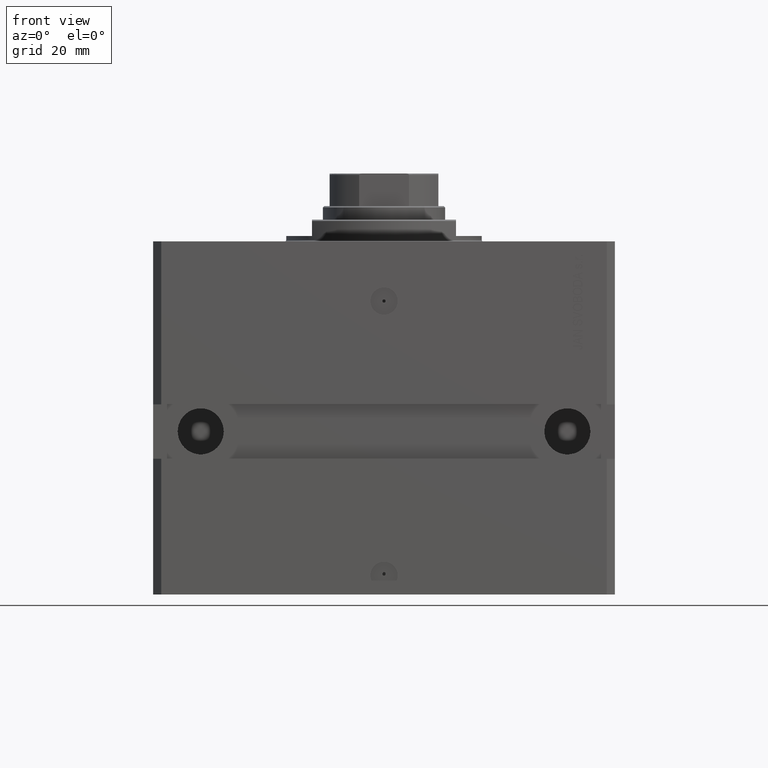
[diagram: clean part render]
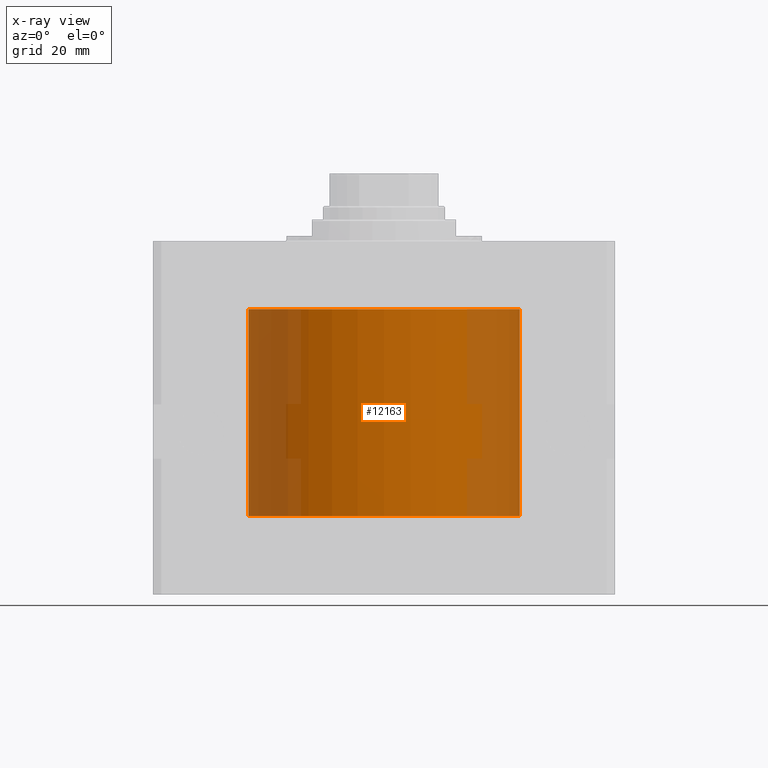
[diagram: x-ray — body ghosted, one internal face saturated and labeled with its STEP entity id]
A machine part, front view, then the same camera in x-ray: the body is ghosted and one INTERNAL B-rep face — a face not visible from any outside direction — is saturated and labeled: STEP entity #12163.
In plain terms, the highlighted cylindrical surface (partial cylindrical patch) has radius 50 mm, axis along (0, 0, 1).
Its self-contained STEP definition (entity closure, byte-faithful):
#1128 = DIRECTION ( 'NONE',  ( 1.000000000000000000, 0.000000000000000000, 0.000000000000000000 ) ) ;
#3129 = AXIS2_PLACEMENT_3D ( 'NONE', #9105, #16707, #19711 ) ;
#3203 = CARTESIAN_POINT ( 'NONE',  ( 50.00000000000000000, 0.000000000000000000, -24.99999999999999289 ) ) ;
#3316 = CARTESIAN_POINT ( 'NONE',  ( -50.00000000000000000, 6.123233995736764507E-15, -101.0999999999999943 ) ) ;
#3879 = VERTEX_POINT ( 'NONE', #41203 ) ;
#4404 = CARTESIAN_POINT ( 'NONE',  ( 0.000000000000000000, 0.000000000000000000, -101.0999999999999943 ) ) ;
#4418 = EDGE_CURVE ( 'NONE', #43694, #29622, #20547, .T. ) ;
#7197 = VECTOR ( 'NONE', #21071, 1000.000000000000000 ) ;
#7861 = ORIENTED_EDGE ( 'NONE', *, *, #4418, .F. ) ;
#8511 = EDGE_CURVE ( 'NONE', #3879, #43694, #28965, .T. ) ;
#9105 = CARTESIAN_POINT ( 'NONE',  ( 0.000000000000000000, 0.000000000000000000, -101.0999999999999943 ) ) ;
#10630 = ORIENTED_EDGE ( 'NONE', *, *, #8511, .F. ) ;
#12163 = ADVANCED_FACE ( 'NONE', ( #33592 ), #37747, .F. ) ;
#15867 = VERTEX_POINT ( 'NONE', #40296 ) ;
#16106 = CARTESIAN_POINT ( 'NONE',  ( 0.000000000000000000, 0.000000000000000000, -24.99999999999999289 ) ) ;
#16707 = DIRECTION ( 'NONE',  ( -0.000000000000000000, -0.000000000000000000, 1.000000000000000000 ) ) ;
#17101 = ORIENTED_EDGE ( 'NONE', *, *, #23902, .T. ) ;
#17375 = LINE ( 'NONE', #3316, #7197 ) ;
#17489 = CIRCLE ( 'NONE', #32969, 50.00000000000000000 ) ;
#17898 = AXIS2_PLACEMENT_3D ( 'NONE', #4404, #39525, #24931 ) ;
#18174 = ORIENTED_EDGE ( 'NONE', *, *, #28197, .T. ) ;
#18883 = DIRECTION ( 'NONE',  ( 0.000000000000000000, 0.000000000000000000, 1.000000000000000000 ) ) ;
#19711 = DIRECTION ( 'NONE',  ( 1.000000000000000000, 0.000000000000000000, 0.000000000000000000 ) ) ;
#20547 = LINE ( 'NONE', #34659, #41430 ) ;
#21071 = DIRECTION ( 'NONE',  ( -0.000000000000000000, -0.000000000000000000, 1.000000000000000000 ) ) ;
#23566 = DIRECTION ( 'NONE',  ( -0.000000000000000000, -0.000000000000000000, 1.000000000000000000 ) ) ;
#23902 = EDGE_CURVE ( 'NONE', #15867, #29622, #17489, .T. ) ;
#24931 = DIRECTION ( 'NONE',  ( 1.000000000000000000, 0.000000000000000000, 0.000000000000000000 ) ) ;
#28197 = EDGE_CURVE ( 'NONE', #3879, #15867, #17375, .T. ) ;
#28965 = CIRCLE ( 'NONE', #17898, 50.00000000000000000 ) ;
#29622 = VERTEX_POINT ( 'NONE', #3203 ) ;
#31290 = EDGE_LOOP ( 'NONE', ( #10630, #18174, #17101, #7861 ) ) ;
#32969 = AXIS2_PLACEMENT_3D ( 'NONE', #16106, #18883, #1128 ) ;
#33592 = FACE_OUTER_BOUND ( 'NONE', #31290, .T. ) ;
#34659 = CARTESIAN_POINT ( 'NONE',  ( 50.00000000000000000, 0.000000000000000000, -101.0999999999999943 ) ) ;
#36002 = CARTESIAN_POINT ( 'NONE',  ( 50.00000000000000000, 0.000000000000000000, -101.0999999999999943 ) ) ;
#37747 = CYLINDRICAL_SURFACE ( 'NONE', #3129, 50.00000000000000000 ) ;
#39525 = DIRECTION ( 'NONE',  ( 0.000000000000000000, 0.000000000000000000, 1.000000000000000000 ) ) ;
#40296 = CARTESIAN_POINT ( 'NONE',  ( -50.00000000000000000, 6.123233995736764507E-15, -24.99999999999999289 ) ) ;
#41203 = CARTESIAN_POINT ( 'NONE',  ( -50.00000000000000000, 6.123233995736764507E-15, -101.0999999999999943 ) ) ;
#41430 = VECTOR ( 'NONE', #23566, 1000.000000000000000 ) ;
#43694 = VERTEX_POINT ( 'NONE', #36002 ) ;